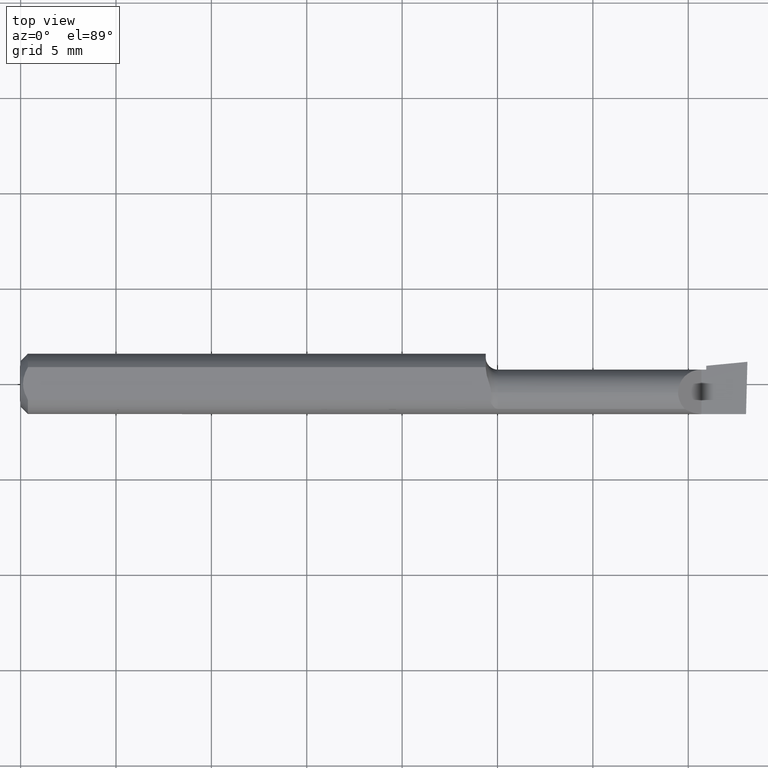
[diagram: clean part render]
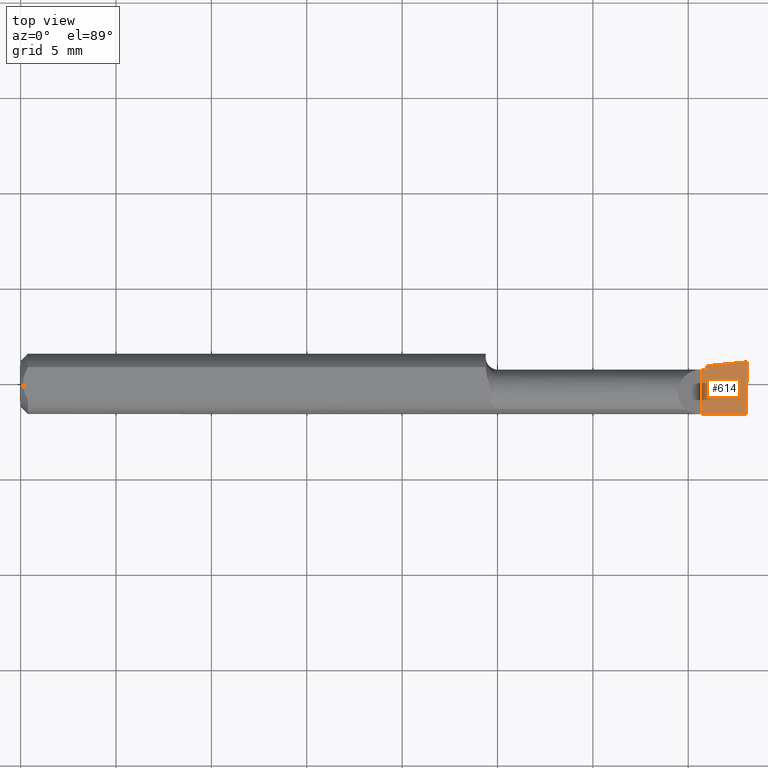
[diagram: same view with one face highlighted and labeled with its STEP entity id]
A machine part, top view. The second image highlights one B-rep face of the part: STEP entity #614.
In plain terms, the highlighted planar face has unit normal (-0, 0, -1).
Its self-contained STEP definition (entity closure, byte-faithful):
#37 = LINE ( 'NONE', #109, #597 ) ;
#43 = DIRECTION ( 'NONE',  ( 0.0000000000000000000, 1.000000000000000000, 0.0000000000000000000 ) ) ;
#58 = DIRECTION ( 'NONE',  ( -0.0000000000000000000, 1.000000000000000000, -0.0000000000000000000 ) ) ;
#72 = CARTESIAN_POINT ( 'NONE',  ( 2.249639673992775738E-32, 0.02964999999999996458, 1.836970198721025250E-16 ) ) ;
#76 = DIRECTION ( 'NONE',  ( 0.02617694830787654220, 0.9996573249755572599, -3.158139334224213540E-18 ) ) ;
#79 = VECTOR ( 'NONE', #76, 39.37007874015748854 ) ;
#82 = DIRECTION ( 'NONE',  ( -1.000000000000000000, 0.0000000000000000000, 1.224646799147350495E-16 ) ) ;
#94 = CARTESIAN_POINT ( 'NONE',  ( 1.405000000000000249, -0.06235000000000005121, 1.163414459189982046E-17 ) ) ;
#109 = CARTESIAN_POINT ( 'NONE',  ( 1.405000000000000249, -0.2500000000000000555, 1.163414459189982046E-17 ) ) ;
#110 = CARTESIAN_POINT ( 'NONE',  ( 1.415000000000000036, 0.02964999999999999927, 1.836970198721026483E-16 ) ) ;
#133 = VERTEX_POINT ( 'NONE', #442 ) ;
#142 = VERTEX_POINT ( 'NONE', #337 ) ;
#154 = CARTESIAN_POINT ( 'NONE',  ( 2.249639673992775738E-32, -0.06234999999999999570, 1.836970198721025250E-16 ) ) ;
#159 = LINE ( 'NONE', #72, #375 ) ;
#184 = CARTESIAN_POINT ( 'NONE',  ( 1.492263437268387616, -0.2497974109750948912, 9.474556785672138714E-19 ) ) ;
#210 = VECTOR ( 'NONE', #43, 39.37007874015748143 ) ;
#212 = VERTEX_POINT ( 'NONE', #243 ) ;
#243 = CARTESIAN_POINT ( 'NONE',  ( 1.415000000000000036, 0.03746543090321034775, 1.899488058094682973E-16 ) ) ;
#245 = DIRECTION ( 'NONE',  ( 1.000000000000000000, 0.0000000000000000000, 0.0000000000000000000 ) ) ;
#271 = LINE ( 'NONE', #287, #435 ) ;
#287 = CARTESIAN_POINT ( 'NONE',  ( 0.8348153170171558335, -0.01839999999999999969, 8.146162928567849885E-17 ) ) ;
#289 = VERTEX_POINT ( 'NONE', #94 ) ;
#337 = CARTESIAN_POINT ( 'NONE',  ( 1.405000000000000249, 0.02964999999999991601, 1.163414459189982046E-17 ) ) ;
#345 = VECTOR ( 'NONE', #646, 39.37007874015748143 ) ;
#367 = LINE ( 'NONE', #546, #210 ) ;
#375 = VECTOR ( 'NONE', #245, 39.37007874015748143 ) ;
#382 = VERTEX_POINT ( 'NONE', #110 ) ;
#390 = DIRECTION ( 'NONE',  ( 0.9953961983671787417, 0.09584575252022461966, -1.219008768213806398E-16 ) ) ;
#408 = CARTESIAN_POINT ( 'NONE',  ( 1.500000000000000222, -0.2500000000000000555, 0.0000000000000000000 ) ) ;
#411 = DIRECTION ( 'NONE',  ( -1.224646799147350495E-16, 0.0000000000000000000, -1.000000000000000000 ) ) ;
#435 = VECTOR ( 'NONE', #390, 39.37007874015748143 ) ;
#437 = EDGE_CURVE ( 'NONE', #672, #289, #637, .T. ) ;
#442 = CARTESIAN_POINT ( 'NONE',  ( 1.500000000000005551, 0.04565000000000923180, 2.867026448585130532E-14 ) ) ;
#444 = ORIENTED_EDGE ( 'NONE', *, *, #592, .F. ) ;
#456 = EDGE_LOOP ( 'NONE', ( #709, #650, #658, #640, #444, #490 ) ) ;
#459 = EDGE_CURVE ( 'NONE', #382, #212, #367, .T. ) ;
#477 = EDGE_CURVE ( 'NONE', #289, #142, #37, .T. ) ;
#483 = CARTESIAN_POINT ( 'NONE',  ( 1.497171920470529161, -0.06235000000000005121, 3.552677088412748576E-19 ) ) ;
#490 = ORIENTED_EDGE ( 'NONE', *, *, #477, .F. ) ;
#535 = LINE ( 'NONE', #184, #79 ) ;
#538 = EDGE_CURVE ( 'NONE', #212, #133, #271, .T. ) ;
#546 = CARTESIAN_POINT ( 'NONE',  ( 1.415000000000000036, -0.2500000000000000555, 1.040949779275248537E-17 ) ) ;
#592 = EDGE_CURVE ( 'NONE', #142, #382, #159, .T. ) ;
#597 = VECTOR ( 'NONE', #58, 39.37007874015748143 ) ;
#614 = ADVANCED_FACE ( 'NONE', ( #656 ), #674, .F. ) ;
#637 = LINE ( 'NONE', #154, #345 ) ;
#640 = ORIENTED_EDGE ( 'NONE', *, *, #459, .F. ) ;
#646 = DIRECTION ( 'NONE',  ( -1.000000000000000000, -0.0000000000000000000, -0.0000000000000000000 ) ) ;
#650 = ORIENTED_EDGE ( 'NONE', *, *, #667, .T. ) ;
#656 = FACE_OUTER_BOUND ( 'NONE', #456, .T. ) ;
#658 = ORIENTED_EDGE ( 'NONE', *, *, #538, .F. ) ;
#667 = EDGE_CURVE ( 'NONE', #672, #133, #535, .T. ) ;
#670 = AXIS2_PLACEMENT_3D ( 'NONE', #408, #411, #82 ) ;
#672 = VERTEX_POINT ( 'NONE', #483 ) ;
#674 = PLANE ( 'NONE',  #670 ) ;
#709 = ORIENTED_EDGE ( 'NONE', *, *, #437, .F. ) ;